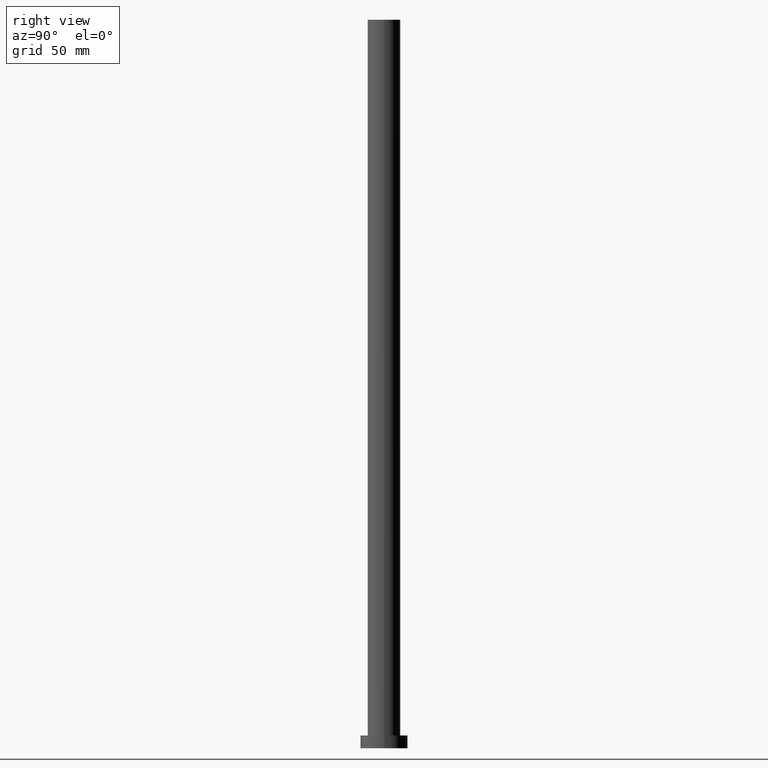
[diagram: clean part render]
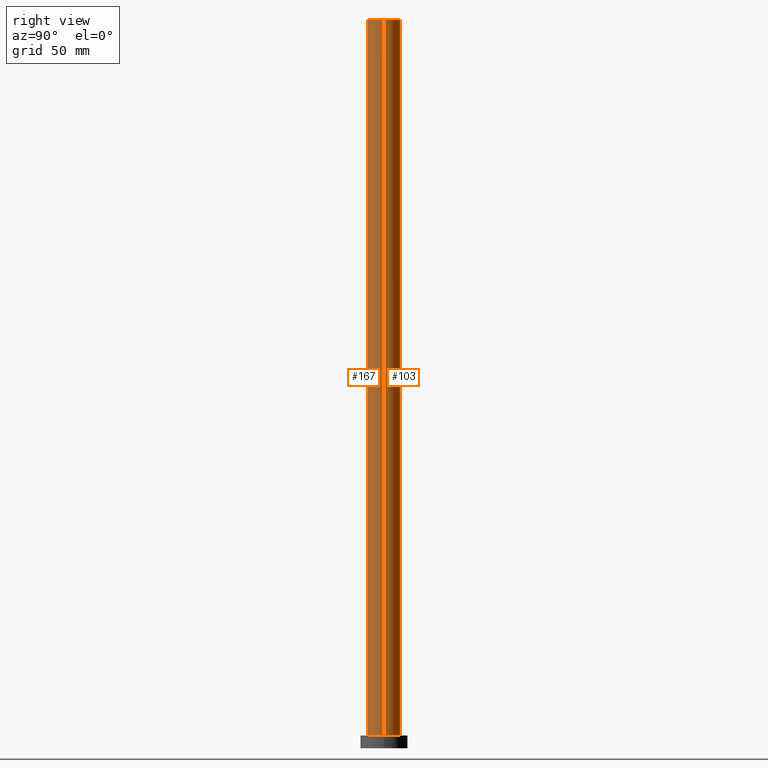
[diagram: same view with one multi-face feature highlighted, each face labeled with its STEP entity id]
A machine part, right view. The highlighted faces form ONE feature: a constant-radius fillet chain: 2 tangent blend faces with common blend radius 9 mm. The faces share edges in the B-rep.
Their STEP definitions:
[1] entity #103 (Cylinder):
#6 = AXIS2_PLACEMENT_3D ( 'NONE', #89, #144, #91 ) ;
#22 = VERTEX_POINT ( 'NONE', #122 ) ;
#23 = VECTOR ( 'NONE', #65, 1000.000000000000000 ) ;
#27 = EDGE_CURVE ( 'NONE', #71, #180, #101, .T. ) ;
#40 = ORIENTED_EDGE ( 'NONE', *, *, #60, .T. ) ;
#48 = ORIENTED_EDGE ( 'NONE', *, *, #151, .F. ) ;
#49 = CARTESIAN_POINT ( 'NONE',  ( 9.000000000000000000, 1.102182119232617714E-15, 400.0000000000000000 ) ) ;
#50 = CARTESIAN_POINT ( 'NONE',  ( 0.000000000000000000, 0.000000000000000000, 400.0000000000000000 ) ) ;
#54 = CARTESIAN_POINT ( 'NONE',  ( 0.000000000000000000, 0.000000000000000000, 7.000000000000000000 ) ) ;
#56 = VERTEX_POINT ( 'NONE', #73 ) ;
#60 = EDGE_CURVE ( 'NONE', #56, #22, #116, .T. ) ;
#65 = DIRECTION ( 'NONE',  ( -0.000000000000000000, -0.000000000000000000, -1.000000000000000000 ) ) ;
#70 = DIRECTION ( 'NONE',  ( 1.000000000000000000, 0.000000000000000000, 0.000000000000000000 ) ) ;
#71 = VERTEX_POINT ( 'NONE', #145 ) ;
#73 = CARTESIAN_POINT ( 'NONE',  ( 9.000000000000000000, 1.102182119232617714E-15, 400.0000000000000000 ) ) ;
#78 = DIRECTION ( 'NONE',  ( -0.000000000000000000, -0.000000000000000000, -1.000000000000000000 ) ) ;
#85 = FACE_OUTER_BOUND ( 'NONE', #210, .T. ) ;
#89 = CARTESIAN_POINT ( 'NONE',  ( 0.000000000000000000, 0.000000000000000000, 400.0000000000000000 ) ) ;
#91 = DIRECTION ( 'NONE',  ( 1.000000000000000000, 0.000000000000000000, 0.000000000000000000 ) ) ;
#100 = ORIENTED_EDGE ( 'NONE', *, *, #27, .F. ) ;
#101 = LINE ( 'NONE', #182, #188 ) ;
#103 = ADVANCED_FACE ( 'NONE', ( #85 ), #223, .T. ) ;
#116 = LINE ( 'NONE', #49, #23 ) ;
#122 = CARTESIAN_POINT ( 'NONE',  ( 9.000000000000000000, 1.102182119232617714E-15, 7.000000000000000000 ) ) ;
#129 = DIRECTION ( 'NONE',  ( -0.000000000000000000, -0.000000000000000000, -1.000000000000000000 ) ) ;
#144 = DIRECTION ( 'NONE',  ( 0.000000000000000000, 0.000000000000000000, 1.000000000000000000 ) ) ;
#145 = CARTESIAN_POINT ( 'NONE',  ( -9.000000000000000000, 0.000000000000000000, 400.0000000000000000 ) ) ;
#150 = DIRECTION ( 'NONE',  ( -1.000000000000000000, 0.000000000000000000, 0.000000000000000000 ) ) ;
#151 = EDGE_CURVE ( 'NONE', #56, #71, #231, .T. ) ;
#177 = EDGE_CURVE ( 'NONE', #22, #180, #220, .T. ) ;
#180 = VERTEX_POINT ( 'NONE', #225 ) ;
#182 = CARTESIAN_POINT ( 'NONE',  ( -9.000000000000000000, 0.000000000000000000, 400.0000000000000000 ) ) ;
#186 = DIRECTION ( 'NONE',  ( 0.000000000000000000, 0.000000000000000000, 1.000000000000000000 ) ) ;
#188 = VECTOR ( 'NONE', #78, 1000.000000000000000 ) ;
#192 = ORIENTED_EDGE ( 'NONE', *, *, #177, .T. ) ;
#202 = AXIS2_PLACEMENT_3D ( 'NONE', #50, #129, #150 ) ;
#210 = EDGE_LOOP ( 'NONE', ( #48, #40, #192, #100 ) ) ;
#220 = CIRCLE ( 'NONE', #249, 9.000000000000000000 ) ;
#223 = CYLINDRICAL_SURFACE ( 'NONE', #202, 9.000000000000000000 ) ;
#225 = CARTESIAN_POINT ( 'NONE',  ( -9.000000000000000000, 0.000000000000000000, 7.000000000000000000 ) ) ;
#231 = CIRCLE ( 'NONE', #6, 9.000000000000000000 ) ;
#249 = AXIS2_PLACEMENT_3D ( 'NONE', #54, #186, #70 ) ;
[2] entity #167 (Cylinder):
#7 = CARTESIAN_POINT ( 'NONE',  ( 0.000000000000000000, 0.000000000000000000, 400.0000000000000000 ) ) ;
#9 = CYLINDRICAL_SURFACE ( 'NONE', #66, 9.000000000000000000 ) ;
#14 = CIRCLE ( 'NONE', #159, 9.000000000000000000 ) ;
#22 = VERTEX_POINT ( 'NONE', #122 ) ;
#23 = VECTOR ( 'NONE', #65, 1000.000000000000000 ) ;
#27 = EDGE_CURVE ( 'NONE', #71, #180, #101, .T. ) ;
#49 = CARTESIAN_POINT ( 'NONE',  ( 9.000000000000000000, 1.102182119232617714E-15, 400.0000000000000000 ) ) ;
#56 = VERTEX_POINT ( 'NONE', #73 ) ;
#60 = EDGE_CURVE ( 'NONE', #56, #22, #116, .T. ) ;
#63 = DIRECTION ( 'NONE',  ( 1.000000000000000000, 0.000000000000000000, 0.000000000000000000 ) ) ;
#65 = DIRECTION ( 'NONE',  ( -0.000000000000000000, -0.000000000000000000, -1.000000000000000000 ) ) ;
#66 = AXIS2_PLACEMENT_3D ( 'NONE', #148, #90, #67 ) ;
#67 = DIRECTION ( 'NONE',  ( -1.000000000000000000, 0.000000000000000000, 0.000000000000000000 ) ) ;
#71 = VERTEX_POINT ( 'NONE', #145 ) ;
#73 = CARTESIAN_POINT ( 'NONE',  ( 9.000000000000000000, 1.102182119232617714E-15, 400.0000000000000000 ) ) ;
#74 = CIRCLE ( 'NONE', #146, 9.000000000000000000 ) ;
#78 = DIRECTION ( 'NONE',  ( -0.000000000000000000, -0.000000000000000000, -1.000000000000000000 ) ) ;
#90 = DIRECTION ( 'NONE',  ( -0.000000000000000000, -0.000000000000000000, -1.000000000000000000 ) ) ;
#98 = ORIENTED_EDGE ( 'NONE', *, *, #60, .F. ) ;
#101 = LINE ( 'NONE', #182, #188 ) ;
#116 = LINE ( 'NONE', #49, #23 ) ;
#122 = CARTESIAN_POINT ( 'NONE',  ( 9.000000000000000000, 1.102182119232617714E-15, 7.000000000000000000 ) ) ;
#138 = ORIENTED_EDGE ( 'NONE', *, *, #161, .T. ) ;
#145 = CARTESIAN_POINT ( 'NONE',  ( -9.000000000000000000, 0.000000000000000000, 400.0000000000000000 ) ) ;
#146 = AXIS2_PLACEMENT_3D ( 'NONE', #7, #222, #63 ) ;
#148 = CARTESIAN_POINT ( 'NONE',  ( 0.000000000000000000, 0.000000000000000000, 400.0000000000000000 ) ) ;
#159 = AXIS2_PLACEMENT_3D ( 'NONE', #169, #172, #165 ) ;
#161 = EDGE_CURVE ( 'NONE', #180, #22, #14, .T. ) ;
#165 = DIRECTION ( 'NONE',  ( 1.000000000000000000, 0.000000000000000000, 0.000000000000000000 ) ) ;
#167 = ADVANCED_FACE ( 'NONE', ( #194 ), #9, .T. ) ;
#169 = CARTESIAN_POINT ( 'NONE',  ( 0.000000000000000000, 0.000000000000000000, 7.000000000000000000 ) ) ;
#172 = DIRECTION ( 'NONE',  ( 0.000000000000000000, 0.000000000000000000, 1.000000000000000000 ) ) ;
#176 = ORIENTED_EDGE ( 'NONE', *, *, #27, .T. ) ;
#180 = VERTEX_POINT ( 'NONE', #225 ) ;
#182 = CARTESIAN_POINT ( 'NONE',  ( -9.000000000000000000, 0.000000000000000000, 400.0000000000000000 ) ) ;
#188 = VECTOR ( 'NONE', #78, 1000.000000000000000 ) ;
#194 = FACE_OUTER_BOUND ( 'NONE', #206, .T. ) ;
#206 = EDGE_LOOP ( 'NONE', ( #98, #226, #176, #138 ) ) ;
#222 = DIRECTION ( 'NONE',  ( 0.000000000000000000, 0.000000000000000000, 1.000000000000000000 ) ) ;
#225 = CARTESIAN_POINT ( 'NONE',  ( -9.000000000000000000, 0.000000000000000000, 7.000000000000000000 ) ) ;
#226 = ORIENTED_EDGE ( 'NONE', *, *, #228, .F. ) ;
#228 = EDGE_CURVE ( 'NONE', #71, #56, #74, .T. ) ;